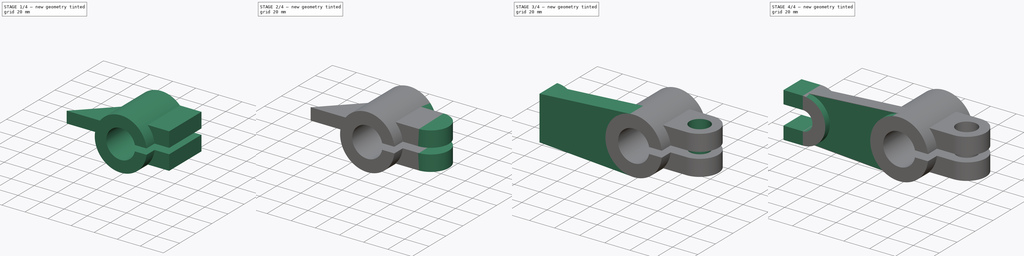
[diagram: build sequence overview — one tinted view per stage of 4, left to right]
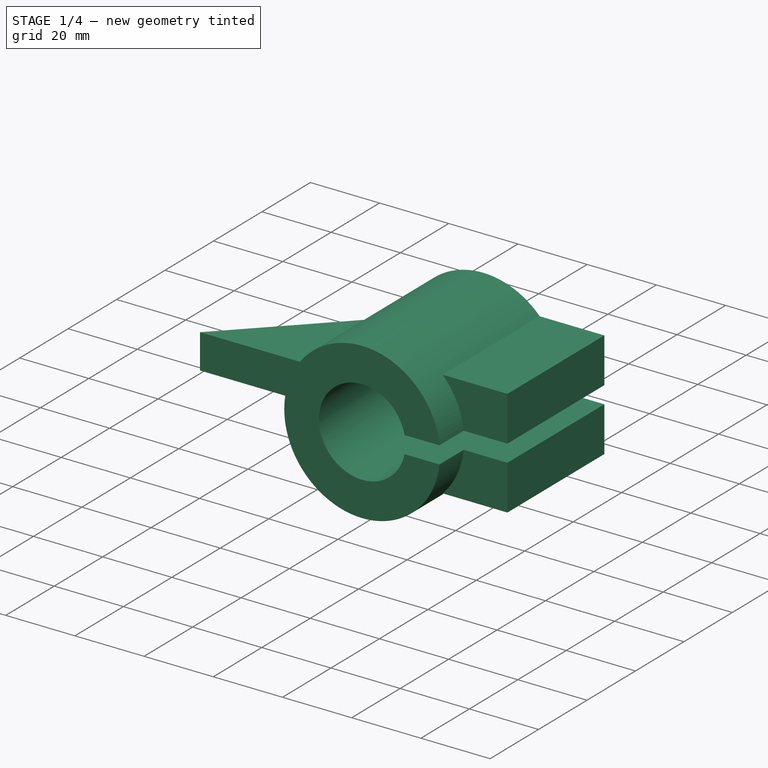
[diagram: stage 1 of 4 — iso view after this stage's code; geometry added in this stage tinted green]
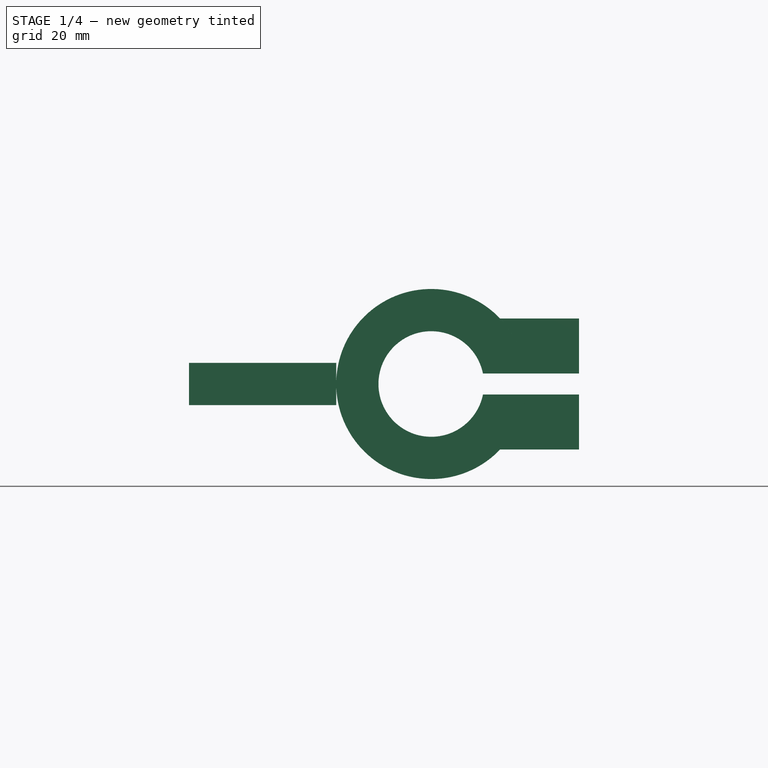
[diagram: stage 1 of 4 — front view after this stage's code; geometry added in this stage tinted green]
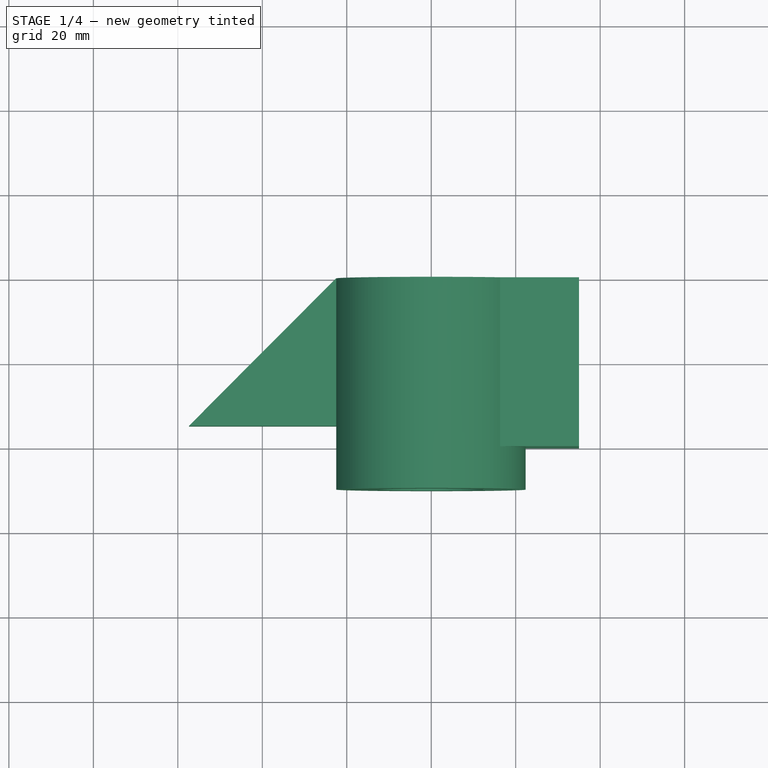
[diagram: stage 1 of 4 — top view after this stage's code; geometry added in this stage tinted green]
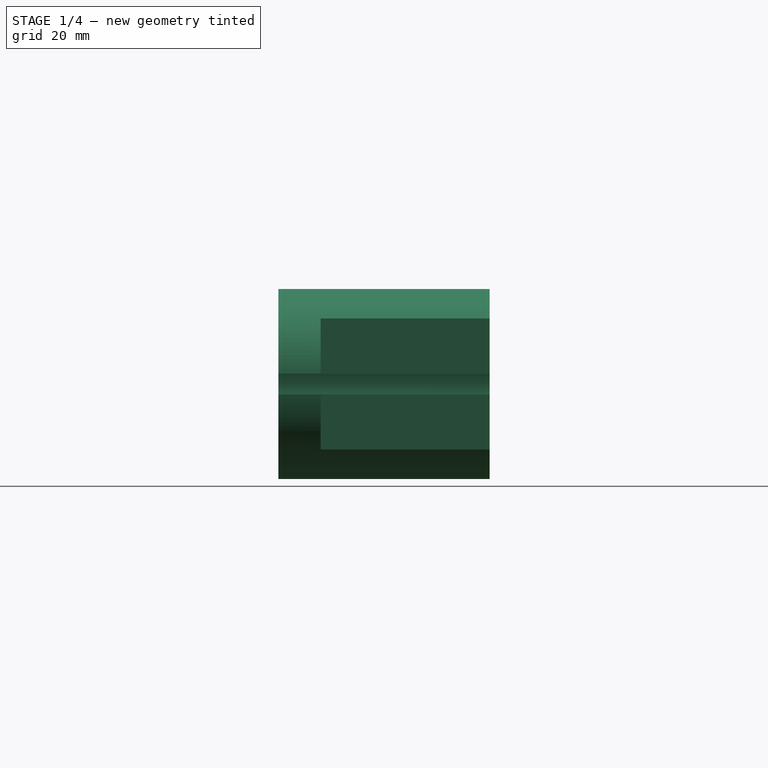
[diagram: stage 1 of 4 — right view after this stage's code; geometry added in this stage tinted green]
FCSTD DOCUMENT  (FreeCAD 0.18R4 (GitTag))
Label: Set 4
License: All rights reserved
LicenseURL: http://en.wikipedia.org/wiki/All_rights_reserved
objects: Sketcher::SketchObject×13, PartDesign::Pad×7, PartDesign::Pocket×5, PartDesign::Body×2, PartDesign::Mirrored×1
note: 40 computed .brp shape members not serialized (recipe doc carries the construction recipe); baked Part::Feature solids carry a one-line shape summary decoded from their .brp

FEATURE [PartDesign::Pad] Pad
  Length = 50
  Length2 = 100
  Placement = pos=(0,0,0) rot=(1,0,0;1.5708rad)
  Type = 0
FEATURE [Sketcher::SketchObject] Sketch001
  ExternalGeometry = -> [Pad]
  MapMode = 5
  Placement = pos=(0,0,0) rot=(-1,0,0;1.5708rad)
  Support = -> [Pad]
  sketch-geometry (8):
    g0: LineSegment StartX=16.3095 StartY=15.5 StartZ=0 EndX=35 EndY=15.5 EndZ=0
    g1: LineSegment StartX=35 StartY=15.5 StartZ=0 EndX=35 EndY=2.5 EndZ=0
    g2: LineSegment StartX=35 StartY=2.5 StartZ=0 EndX=22.3607 EndY=2.5 EndZ=0
    g3: ArcOfCircle CenterX=0 CenterY=0 CenterZ=0 NormalX=0 NormalY=0 NormalZ=1 AngleXU=0 Radius=22.5 StartAngle=0.111341 EndAngle=0.759955
    g4: LineSegment StartX=16.3095 StartY=-15.5 StartZ=0 EndX=35 EndY=-15.5 EndZ=0
    g5: ArcOfCircle CenterX=0 CenterY=0 CenterZ=0 NormalX=0 NormalY=0 NormalZ=1 AngleXU=0 Radius=22.5 StartAngle=5.52323 EndAngle=6.17184
    g6: LineSegment StartX=35 StartY=-2.5 StartZ=0 EndX=22.3607 EndY=-2.5 EndZ=0
    g7: LineSegment StartX=35 StartY=-15.5 StartZ=0 EndX=35 EndY=-2.5 EndZ=0
  constraints (18):
    c: Coincident(g0,g1)
    c: Coincident(g1,g2)
    c: Horizontal(g0)
    c: Horizontal(g2)
    c: Vertical(g1)
    c: Coincident(g3,g0)
    c: Coincident(g2,g3)
    c: Coincident(g3,g-1)
    c: DistanceY(g1,g1) = 13
    c: Coincident(g2,g-3)
    c: DistanceX(g-1,g0) = 35
    c: Coincident(g4,g7)
    c: Coincident(g7,g6)
    c: Horizontal(g4)
    c: Horizontal(g6)
    c: Vertical(g7)
    c: Coincident(g5,g4)
    c: Coincident(g6,g5)
FEATURE [PartDesign::Pad] Pad001
  BaseFeature = -> Pad
  Length = 40
  Length2 = 100
  Placement = pos=(0,0,0) rot=(1,0,0;1.5708rad)
  Profile = -> Sketch001
  Reversed = true
  Type = 0
FEATURE [PartDesign::Body] Body001
  Group = -> [Pad,Sketch001,Pad001,Sketch002,Pocket,Sketch003,Sketch004,Pad002,Mirrored,Sketch005,Pocket001,Sketch006,Pad003,Sketch007,Pocket002,Sketch008,Pad004,Sketch010,Sketch011,Pocket003,Sketch012,Pocket004,Sketch,Pad005]
  Origin = -> Origin001
  Tip = -> Pad005
FEATURE [Sketcher::SketchObject] Sketch013
  MapMode = 5
  Support = -> [XY_Plane]
  sketch-geometry (3):
    g0: LineSegment StartX=-22.5 StartY=0 StartZ=0 EndX=-57.3672 EndY=-35 EndZ=0
    g1: LineSegment StartX=-57.3672 StartY=-35 StartZ=0 EndX=-22.5 EndY=-35 EndZ=0
    g2: LineSegment StartX=-22.5 StartY=-35 StartZ=0 EndX=-22.5 EndY=0 EndZ=0
  constraints (8):
    c: Coincident(g0,g1)
    c: Coincident(g1,g2)
    c: Coincident(g0,g2)
    c: Parallel(g2,g-2)
    c: DistanceY(g2,g2) = 35
    c: DistanceX(g0,g-1) = 22.5
    c: Parallel(g1,g-1)
    c: PointOnObject(g0,g-1)
FEATURE [PartDesign::Pad] Pad006
  Length = 10
  Length2 = 100
  Midplane = true
  Profile = -> Sketch013
  Type = 0
FEATURE [PartDesign::Body] Body
  Group = -> [Sketch013,Pad006]
  Origin = -> Origin
  Tip = -> Pad006
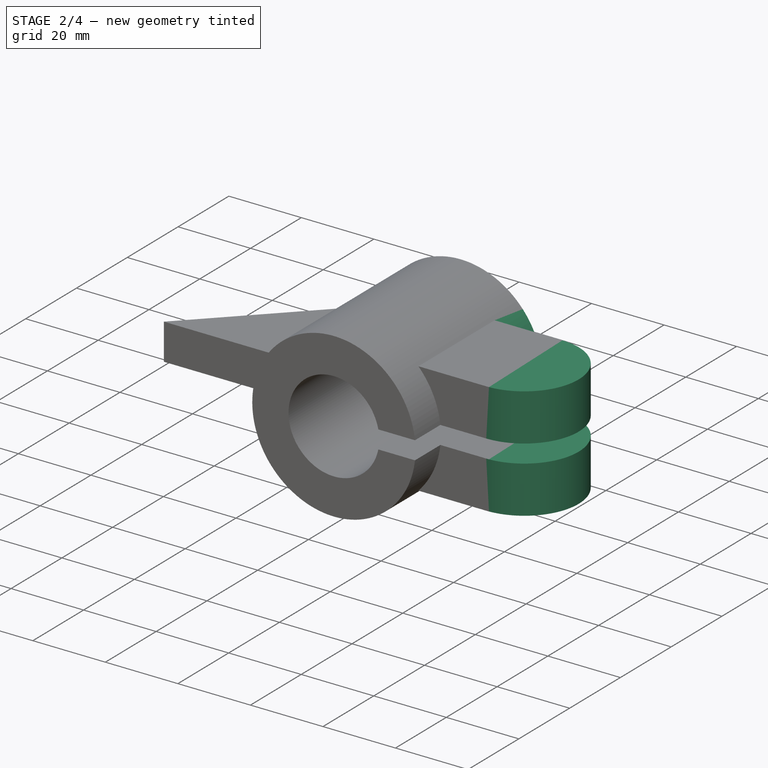
[diagram: stage 2 of 4 — iso view after this stage's code; geometry added in this stage tinted green]
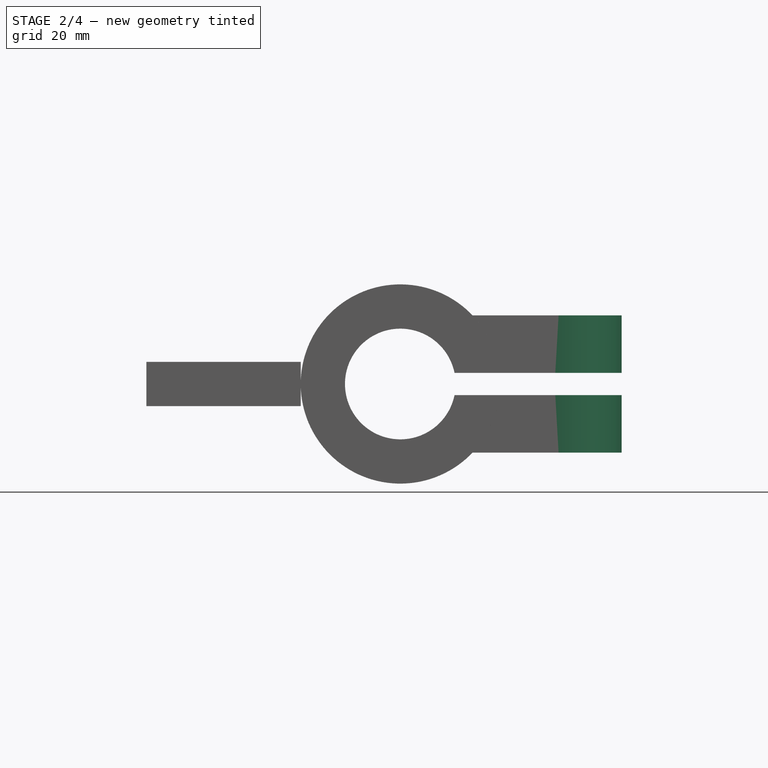
[diagram: stage 2 of 4 — front view after this stage's code; geometry added in this stage tinted green]
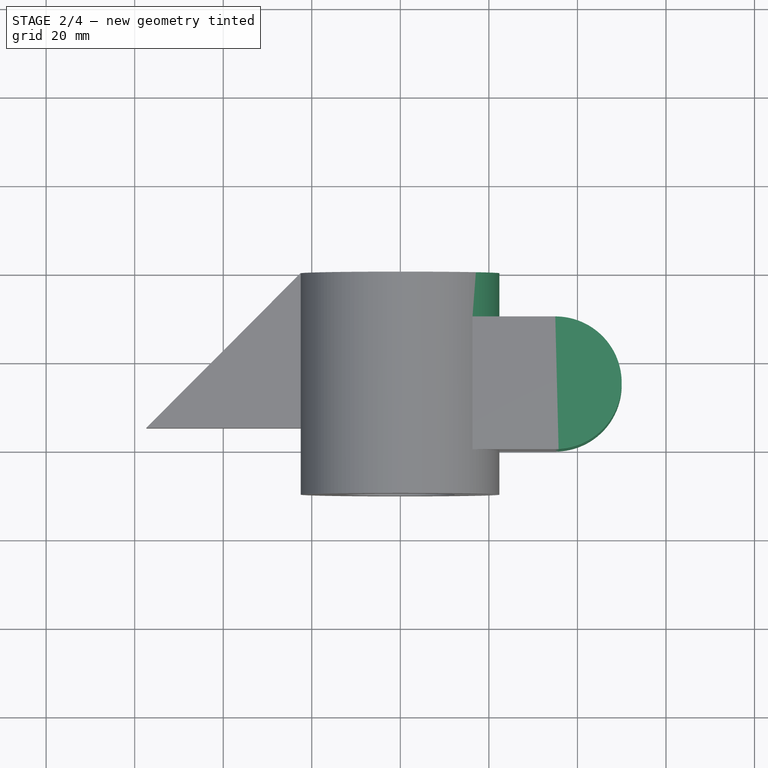
[diagram: stage 2 of 4 — top view after this stage's code; geometry added in this stage tinted green]
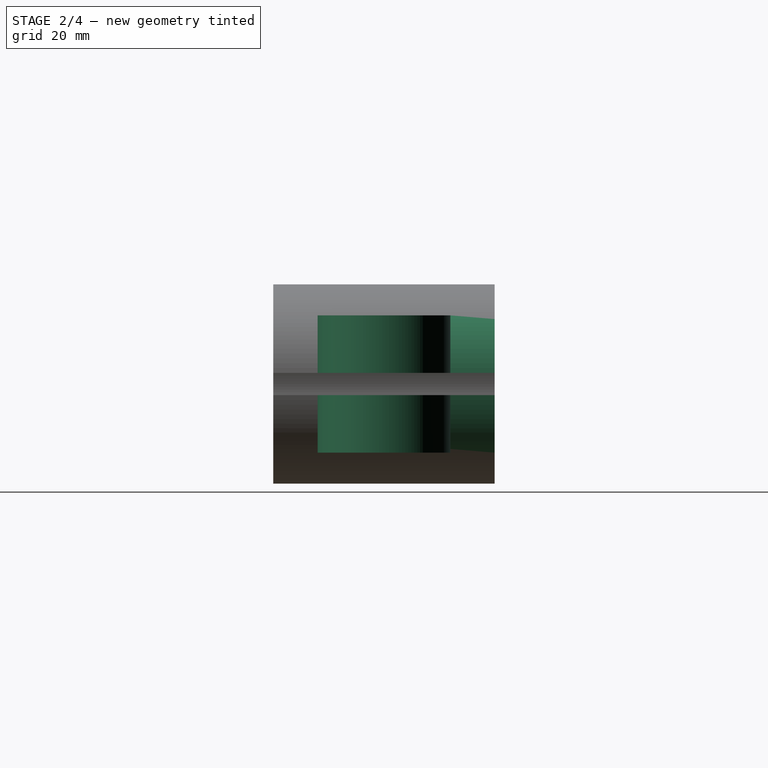
[diagram: stage 2 of 4 — right view after this stage's code; geometry added in this stage tinted green]
FEATURE [Sketcher::SketchObject] Sketch002
  ExternalGeometry = -> [Pad001]
  MapMode = 5
  Placement = pos=(0,0,0) rot=(-1,0,0;1.5708rad)
  Support = -> [Pad001]
  sketch-geometry (8):
    g0: LineSegment StartX=16.3095 StartY=15.5 StartZ=0 EndX=35 EndY=15.5 EndZ=0
    g1: LineSegment StartX=35 StartY=15.5 StartZ=0 EndX=35 EndY=2.5 EndZ=0
    g2: LineSegment StartX=35 StartY=2.5 StartZ=0 EndX=22.3607 EndY=2.5 EndZ=0
    g3: ArcOfCircle CenterX=-1.02e-14 CenterY=-2e-15 CenterZ=0 NormalX=0 NormalY=0 NormalZ=1 AngleXU=0 Radius=22.5 StartAngle=0.111341 EndAngle=0.759955
    g4: LineSegment StartX=16.3095 StartY=-15.5 StartZ=0 EndX=35 EndY=-15.5 EndZ=0
    g5: LineSegment StartX=35 StartY=-15.5 StartZ=0 EndX=35 EndY=-2.5 EndZ=0
    g6: LineSegment StartX=35 StartY=-2.5 StartZ=0 EndX=22.3607 EndY=-2.5 EndZ=0
    g7: ArcOfCircle CenterX=-1.02e-14 CenterY=2e-15 CenterZ=0 NormalX=0 NormalY=0 NormalZ=1 AngleXU=0 Radius=22.5 StartAngle=5.52323 EndAngle=6.17184
  constraints (14):
    c: Coincident(g0,g1)
    c: Coincident(g1,g2)
    c: Coincident(g3,g2)
    c: Coincident(g3,g0)
    c: Radius(g3) = 22.5
    c: Coincident(g1,g-4)
    c: Coincident(g0,g-3)
    c: Coincident(g0,g-3)
    c: Coincident(g2,g-4)
    c: Coincident(g4,g5)
    c: Coincident(g5,g6)
    c: Coincident(g7,g6)
    c: Coincident(g7,g4)
    c: Radius(g7) = 22.5
FEATURE [PartDesign::Pocket] Pocket
  BaseFeature = -> Pad001
  Length = 10
  Length2 = 100
  Placement = pos=(0,0,0) rot=(1,0,0;1.5708rad)
  Profile = -> Sketch002
  Type = 0
FEATURE [Sketcher::SketchObject] Sketch003
  MapMode = 5
  Placement = pos=(35,0,0) rot=(0.707107,0,0.707107;3.14159rad)
  Support = -> [Pocket]
FEATURE [Sketcher::SketchObject] Sketch004
  ExternalGeometry = -> [Pocket]
  MapMode = 5
  Placement = pos=(0,2.5e-14,15.5) rot=(0,0,1;3.14159rad)
  Support = -> [Pocket]
  sketch-geometry (2):
    g0: LineSegment StartX=-35 StartY=40 StartZ=0 EndX=-35 EndY=10 EndZ=0
    g1: ArcOfCircle CenterX=-35 CenterY=25 CenterZ=0 NormalX=0 NormalY=0 NormalZ=1 AngleXU=0 Radius=15 StartAngle=1.57079 EndAngle=4.71239
  constraints (5):
    c: Coincident(g1,g0)
    c: Radius(g1) = 15
    c: Coincident(g0,g-3)
    c: Coincident(g-3,g0)
    c: Coincident(g1,g0)
FEATURE [PartDesign::Pad] Pad002
  BaseFeature = -> Pocket
  Length = 13
  Length2 = 100
  Placement = pos=(0,0,0) rot=(1,0,0;1.5708rad)
  Profile = -> Sketch004
  Reversed = true
  Type = 0
FEATURE [PartDesign::Mirrored] Mirrored
  BaseFeature = -> Pad002
  MirrorPlane = -> XY_Plane001
  Originals = -> [Pad002]
  Placement = pos=(0,0,0) rot=(1,0,0;1.5708rad)
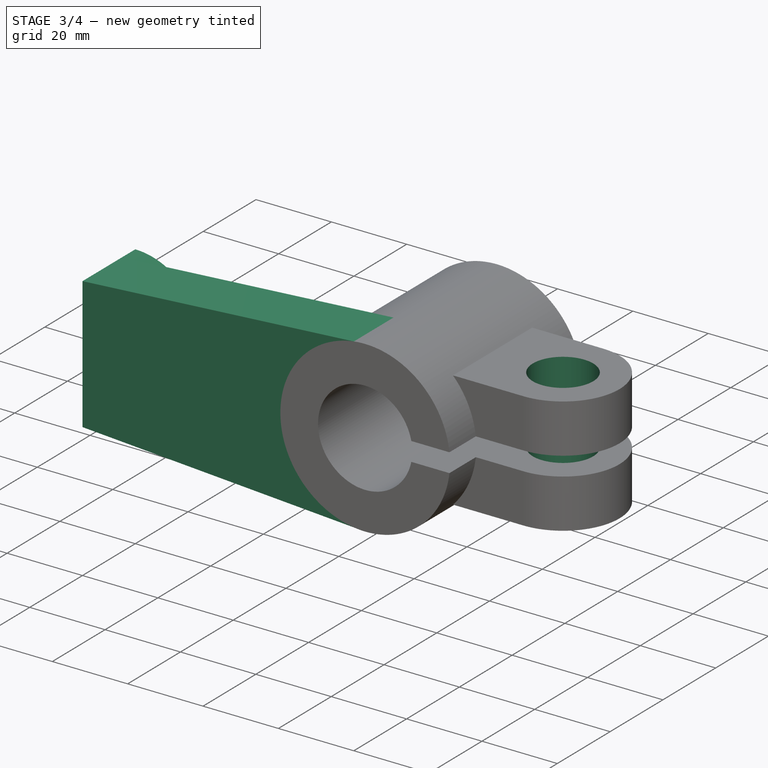
[diagram: stage 3 of 4 — iso view after this stage's code; geometry added in this stage tinted green]
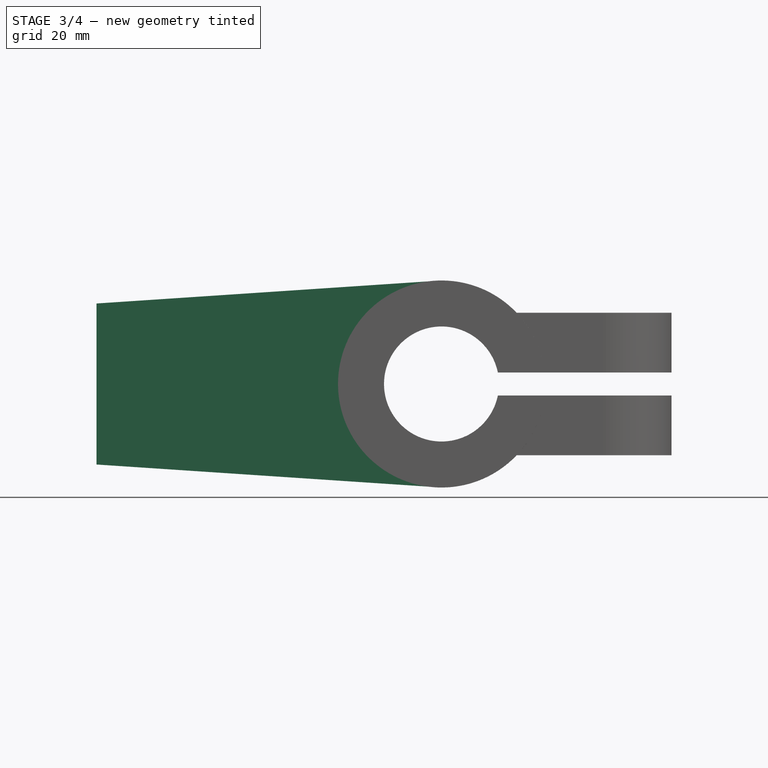
[diagram: stage 3 of 4 — front view after this stage's code; geometry added in this stage tinted green]
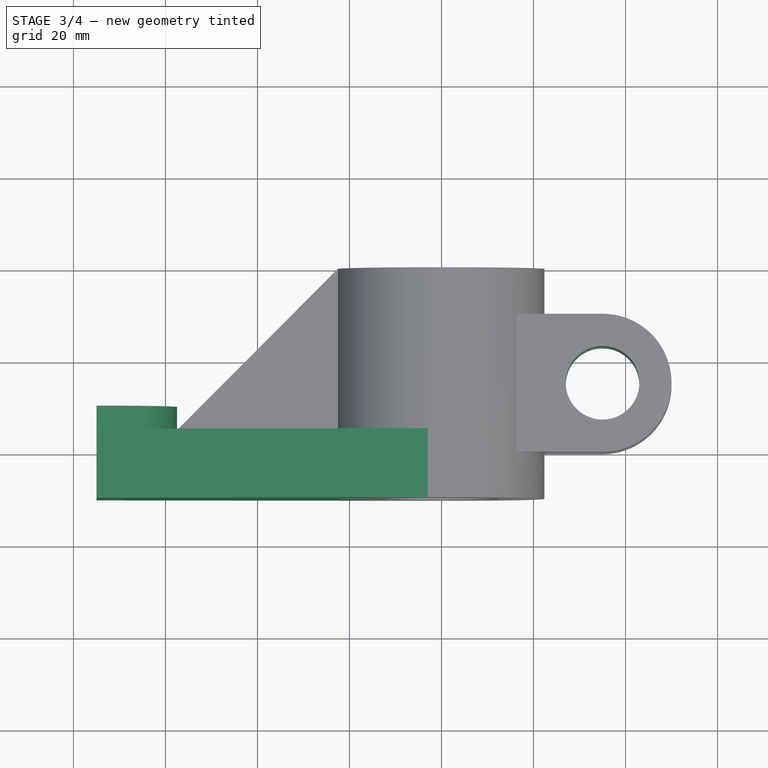
[diagram: stage 3 of 4 — top view after this stage's code; geometry added in this stage tinted green]
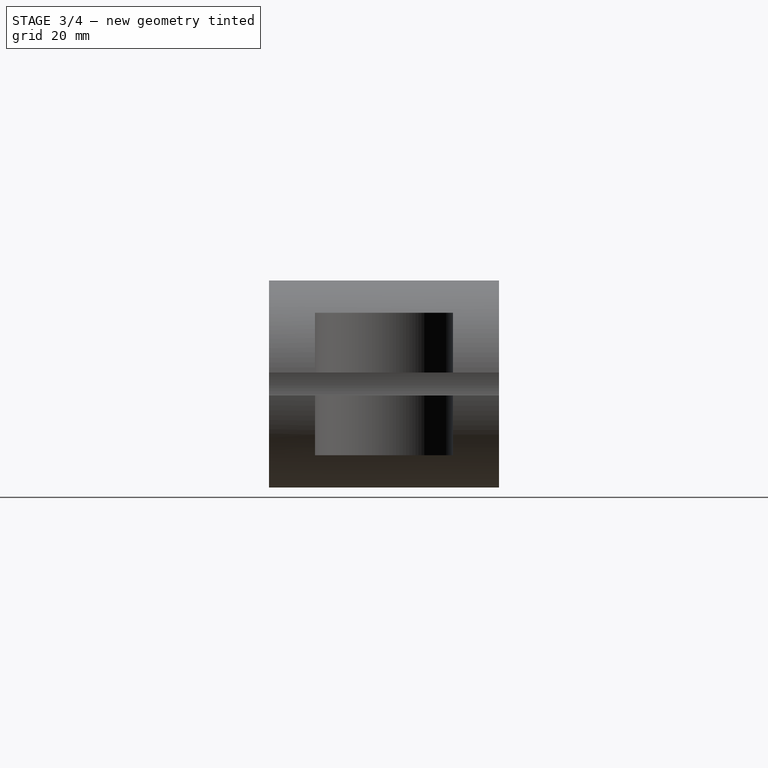
[diagram: stage 3 of 4 — right view after this stage's code; geometry added in this stage tinted green]
FEATURE [Sketcher::SketchObject] Sketch005
  ExternalGeometry = -> [Mirrored]
  MapMode = 5
  Placement = pos=(0,-3.18e-14,-15.5) rot=(1,0,0;3.14159rad)
  Support = -> [Mirrored]
  sketch-geometry (1):
    g0: Circle CenterX=35 CenterY=25 CenterZ=0 NormalX=0 NormalY=0 NormalZ=1 AngleXU=0 Radius=8
  constraints (2):
    c: Coincident(g-3,g0)
    c: Radius(g0) = 8
FEATURE [PartDesign::Pocket] Pocket001
  BaseFeature = -> Mirrored
  Length = 5
  Length2 = 100
  Placement = pos=(0,0,0) rot=(1,0,0;1.5708rad)
  Profile = -> Sketch005
  Type = 1
FEATURE [Sketcher::SketchObject] Sketch006
  ExternalGeometry = -> [Pocket001]
  MapMode = 5
  Placement = pos=(0,-50,1.221e-13) rot=(1,0,0;1.5708rad)
  Support = -> [Pocket001]
  sketch-geometry (4):
    g0: LineSegment StartX=0 StartY=22.5 StartZ=0 EndX=0 EndY=-22.5 EndZ=0
    g1: LineSegment StartX=-75 StartY=-17.5 StartZ=0 EndX=-75 EndY=17.5 EndZ=0
    g2: LineSegment StartX=-75 StartY=17.5 StartZ=0 EndX=0 EndY=22.5 EndZ=0
    g3: LineSegment StartX=-75 StartY=-17.5 StartZ=0 EndX=0 EndY=-22.5 EndZ=0
  constraints (11):
    c: Vertical(g0)
    c: PointOnObject(g0,g-2)
    c: PointOnObject(g0,g-3)
    c: PointOnObject(g0,g-3)
    c: DistanceY(g1,g1) = 35
    c: Coincident(g2,g0)
    c: Coincident(g2,g1)
    c: Coincident(g3,g0)
    c: Coincident(g3,g1)
    c: Symmetric(g1,g1,g-1)
    c: DistanceX(g1,g-1) = 75
FEATURE [PartDesign::Pad] Pad003
  BaseFeature = -> Pocket001
  Length = 15
  Length2 = 100
  Placement = pos=(0,0,0) rot=(1,0,0;1.5708rad)
  Profile = -> Sketch006
  Reversed = true
  Type = 0
FEATURE [Sketcher::SketchObject] Sketch007
  MapMode = 5
  Placement = pos=(0,0,0) rot=(-1,0,0;1.5708rad)
  Support = -> [Pad003]
  sketch-geometry (2):
    g0: ArcOfCircle CenterX=0 CenterY=0 CenterZ=0 NormalX=0 NormalY=0 NormalZ=1 AngleXU=0 Radius=12.5 StartAngle=1.5708 EndAngle=4.71239
    g1: LineSegment StartX=8e-16 StartY=12.5 StartZ=0 EndX=-2.3e-15 EndY=-12.5 EndZ=0
  constraints (6):
    c: Coincident(g0,g-1)
    c: Radius(g0) = 12.5
    c: Parallel(g1,g-2)
    c: Coincident(g1,g0)
    c: Coincident(g1,g0)
    c: PointOnObject(g0,g-2)
FEATURE [PartDesign::Pocket] Pocket002
  BaseFeature = -> Pad003
  Length = 5
  Length2 = 100
  Placement = pos=(0,0,0) rot=(1,0,0;1.5708rad)
  Profile = -> Sketch007
  Type = 1
FEATURE [Sketcher::SketchObject] Sketch008
  ExternalGeometry = -> [Pocket002]
  MapMode = 5
  Placement = pos=(0,-50,1.59e-13) rot=(1,0,0;1.5708rad)
  Support = -> [Pocket002]
  sketch-geometry (4):
    g0: ArcOfCircle CenterX=-75 CenterY=1.22e-14 CenterZ=0 NormalX=0 NormalY=0 NormalZ=1 AngleXU=0 Radius=17.5 StartAngle=4.71239 EndAngle=7.85398
    g1: ArcOfCircle CenterX=-75 CenterY=1.22e-14 CenterZ=0 NormalX=0 NormalY=0 NormalZ=1 AngleXU=0 Radius=7.5 StartAngle=4.71239 EndAngle=7.85399
    g2: LineSegment StartX=-75 StartY=17.5 StartZ=0 EndX=-75 EndY=7.5 EndZ=0
    g3: LineSegment StartX=-75 StartY=-7.5 StartZ=0 EndX=-75 EndY=-17.5 EndZ=0
  constraints (11):
    c: Radius(g0) = 17.5
    c: Coincident(g0,g-3)
    c: Coincident(g-3,g0)
    c: Coincident(g1,g0)
    c: Radius(g1) = 7.5
    c: PointOnObject(g1,g-3)
    c: PointOnObject(g1,g-3)
    c: Coincident(g3,g0)
    c: Coincident(g3,g1)
    c: Coincident(g2,g0)
    c: Coincident(g2,g1)
FEATURE [PartDesign::Pad] Pad004
  BaseFeature = -> Pocket002
  Length = 20
  Length2 = 100
  Placement = pos=(0,0,0) rot=(1,0,0;1.5708rad)
  Profile = -> Sketch008
  Reversed = true
  Type = 0
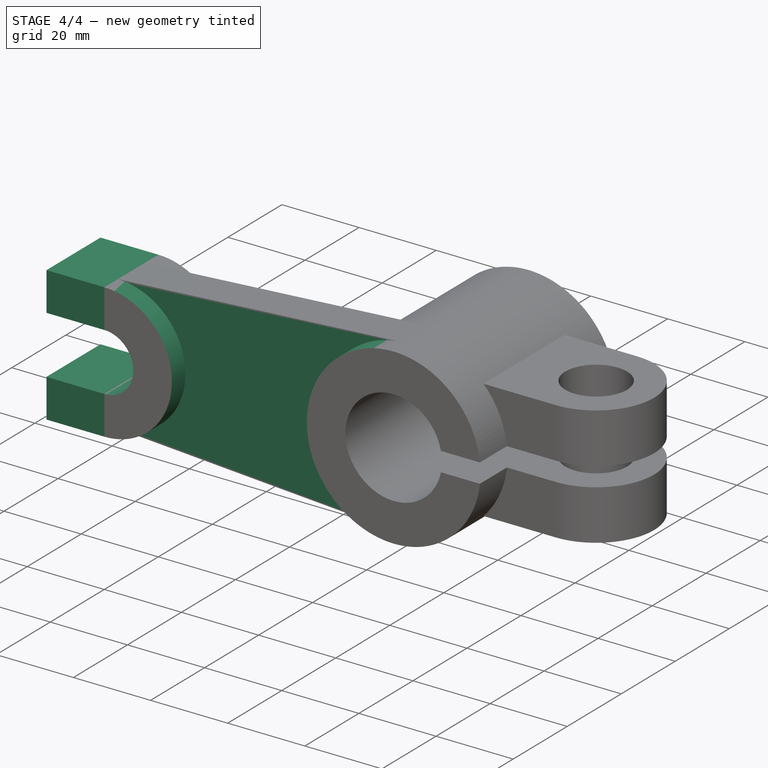
[diagram: stage 4 of 4 — iso view after this stage's code; geometry added in this stage tinted green]
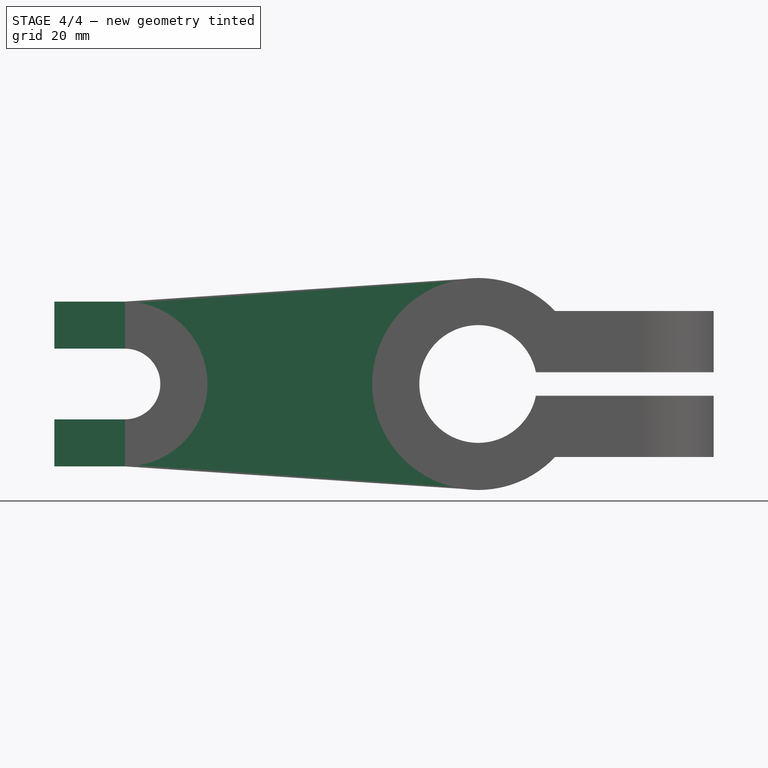
[diagram: stage 4 of 4 — front view after this stage's code; geometry added in this stage tinted green]
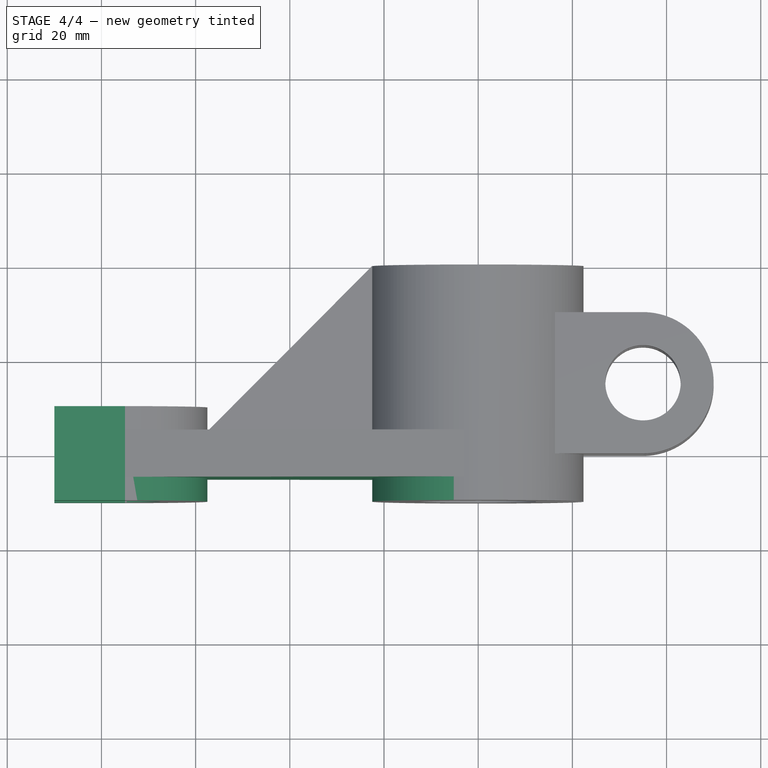
[diagram: stage 4 of 4 — top view after this stage's code; geometry added in this stage tinted green]
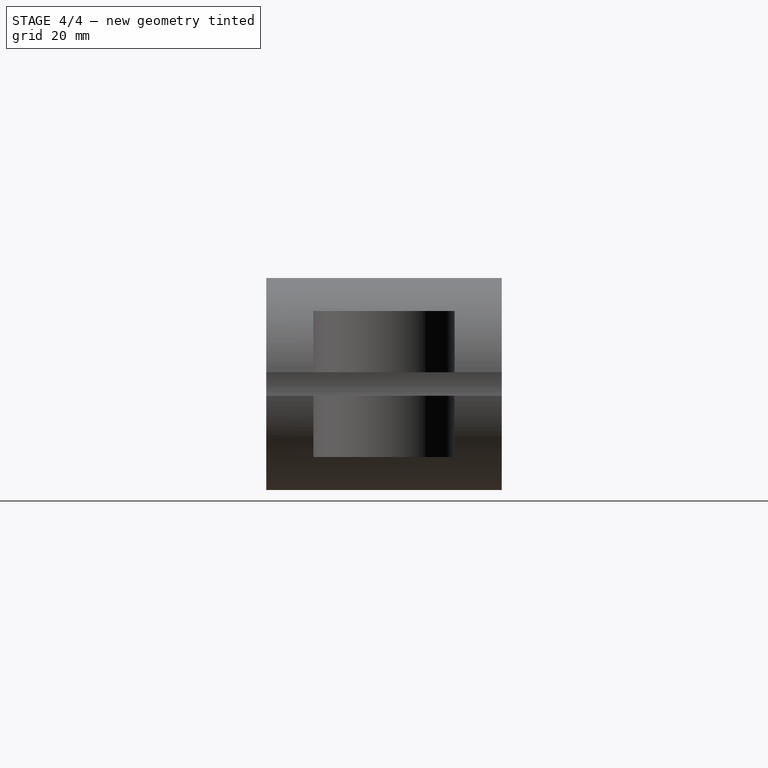
[diagram: stage 4 of 4 — right view after this stage's code; geometry added in this stage tinted green]
FEATURE [Sketcher::SketchObject] Sketch010
  MapMode = 5
  Placement = pos=(0,-50,1.812e-13) rot=(1,0,0;1.5708rad)
  Support = -> [Pad004]
FEATURE [Sketcher::SketchObject] Sketch011
  ExternalGeometry = -> [Pad004]
  MapMode = 5
  Placement = pos=(0,-50,1.812e-13) rot=(1,0,0;1.5708rad)
  Support = -> [Pad004]
  sketch-geometry (4):
    g0: LineSegment StartX=-75 StartY=17.5 StartZ=0 EndX=-2.98673 EndY=22.3009 EndZ=0
    g1: LineSegment StartX=-75 StartY=-17.5 StartZ=0 EndX=-2.98673 EndY=-22.3009 EndZ=0
    g2: ArcOfCircle CenterX=2.741e-13 CenterY=4.5e-15 CenterZ=0 NormalX=0 NormalY=0 NormalZ=1 AngleXU=0 Radius=22.5 StartAngle=1.70393 EndAngle=4.57925
    g3: ArcOfCircle CenterX=-75 CenterY=6.2e-15 CenterZ=0 NormalX=0 NormalY=0 NormalZ=1 AngleXU=0 Radius=17.5 StartAngle=4.71239 EndAngle=7.85398
  constraints (10):
    c: Coincident(g0,g-3)
    c: Coincident(g0,g-3)
    c: Coincident(g-4,g1)
    c: Coincident(g-4,g1)
    c: Coincident(g2,g1)
    c: Coincident(g2,g0)
    c: Radius(g2) = 22.5
    c: Coincident(g3,g1)
    c: Coincident(g3,g0)
    c: Radius(g3) = 17.5
FEATURE [PartDesign::Pocket] Pocket003
  BaseFeature = -> Pad004
  Length = 5
  Length2 = 100
  Placement = pos=(0,0,0) rot=(1,0,0;1.5708rad)
  Profile = -> Sketch011
  Type = 0
FEATURE [Sketcher::SketchObject] Sketch012
  ExternalGeometry = -> [Pocket003]
  MapMode = 5
  Placement = pos=(0,-35,1.424e-13) rot=(-1,0,0;1.5708rad)
  Support = -> [Pocket003]
  sketch-geometry (2):
    g0: LineSegment StartX=-75 StartY=7.5 StartZ=0 EndX=-75 EndY=-7.5 EndZ=0
    g1: ArcOfCircle CenterX=-75 CenterY=-1.24e-14 CenterZ=0 NormalX=0 NormalY=0 NormalZ=1 AngleXU=0 Radius=7.5 StartAngle=4.71238 EndAngle=7.85399
  constraints (5):
    c: Radius(g1) = 7.5
    c: Coincident(g-3,g1)
    c: Coincident(g-3,g1)
    c: Coincident(g0,g1)
    c: Coincident(g1,g0)
FEATURE [PartDesign::Pocket] Pocket004
  BaseFeature = -> Pocket003
  Length = 5
  Length2 = 100
  Placement = pos=(0,0,0) rot=(1,0,0;1.5708rad)
  Profile = -> Sketch012
  Type = 1
FEATURE [Sketcher::SketchObject] Sketch
  ExternalGeometry = -> [Pocket004]
  MapMode = 5
  Placement = pos=(0,-30,1.284e-13) rot=(-1,0,0;1.5708rad)
  Support = -> [Pocket004]
  sketch-geometry (8):
    g0: LineSegment StartX=-90 StartY=17.5 StartZ=0 EndX=-75 EndY=17.5 EndZ=0
    g1: LineSegment StartX=-75 StartY=17.5 StartZ=0 EndX=-75 EndY=7.5 EndZ=0
    g2: LineSegment StartX=-75 StartY=7.5 StartZ=0 EndX=-90 EndY=7.5 EndZ=0
    g3: LineSegment StartX=-90 StartY=7.5 StartZ=0 EndX=-90 EndY=17.5 EndZ=0
    g4: LineSegment StartX=-90 StartY=-17.5 StartZ=0 EndX=-75 EndY=-17.5 EndZ=0
    g5: LineSegment StartX=-75 StartY=-17.5 StartZ=0 EndX=-75 EndY=-7.5 EndZ=0
    g6: LineSegment StartX=-75 StartY=-7.5 StartZ=0 EndX=-90 EndY=-7.5 EndZ=0
    g7: LineSegment StartX=-90 StartY=-7.5 StartZ=0 EndX=-90 EndY=-17.5 EndZ=0
  constraints (17):
    c: Coincident(g0,g1)
    c: Coincident(g1,g2)
    c: Coincident(g2,g3)
    c: Coincident(g3,g0)
    c: Horizontal(g0)
    c: Horizontal(g2)
    c: Vertical(g3)
    c: DistanceX(g0,g0) = 15
    c: Coincident(g1,g-3)
    c: Coincident(g-3,g0)
    c: Coincident(g4,g5)
    c: Coincident(g5,g6)
    c: Coincident(g6,g7)
    c: Coincident(g7,g4)
    c: Horizontal(g4)
    c: Horizontal(g6)
    c: Vertical(g7)
FEATURE [PartDesign::Pad] Pad005
  BaseFeature = -> Pocket004
  Length = 20
  Length2 = 100
  Placement = pos=(0,0,0) rot=(1,0,0;1.5708rad)
  Profile = -> Sketch
  Reversed = true
  Type = 0
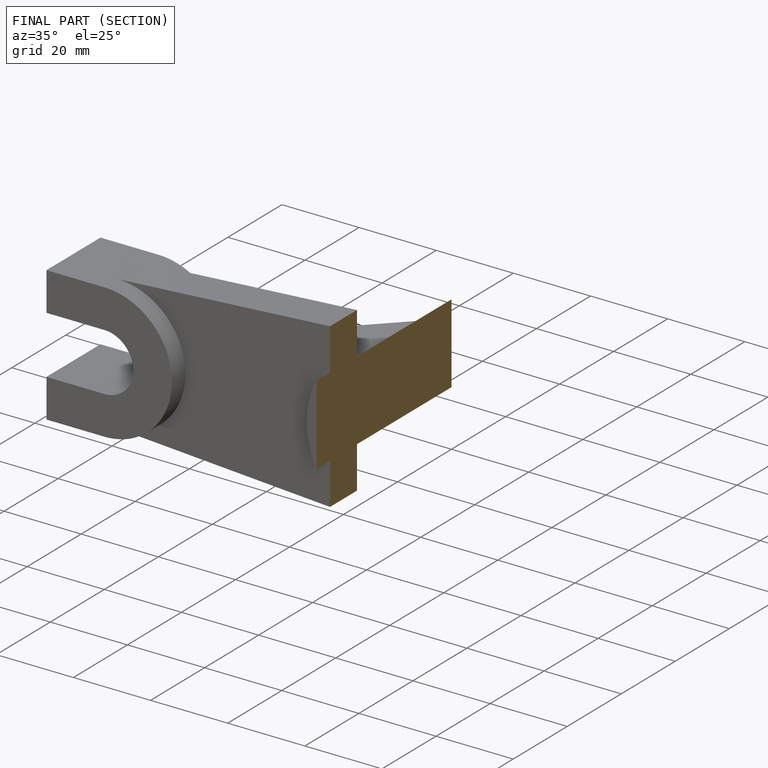
[diagram: finished part — half-section view (interior)]
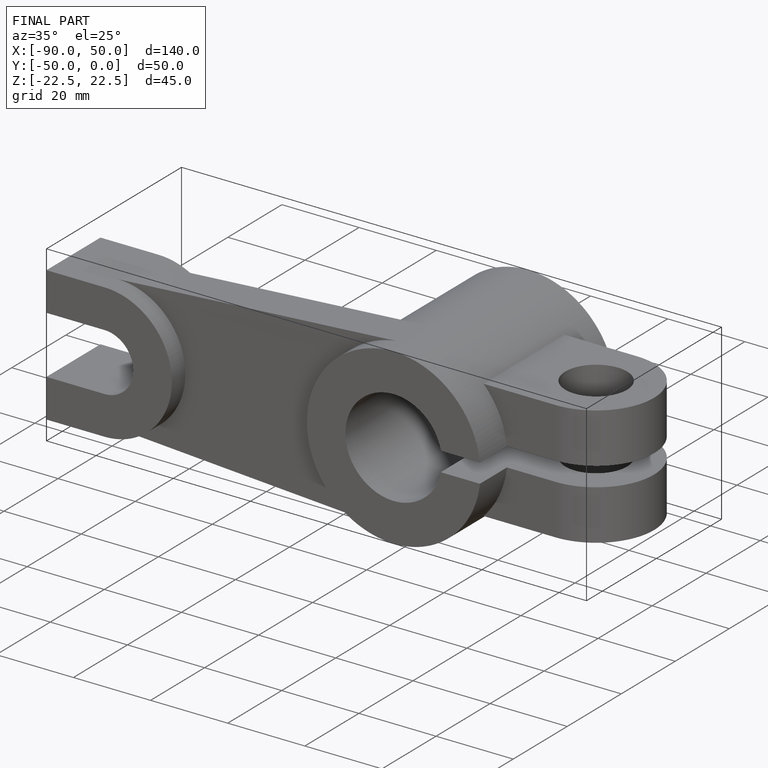
[diagram: finished part — iso view with bounding-box wireframe]
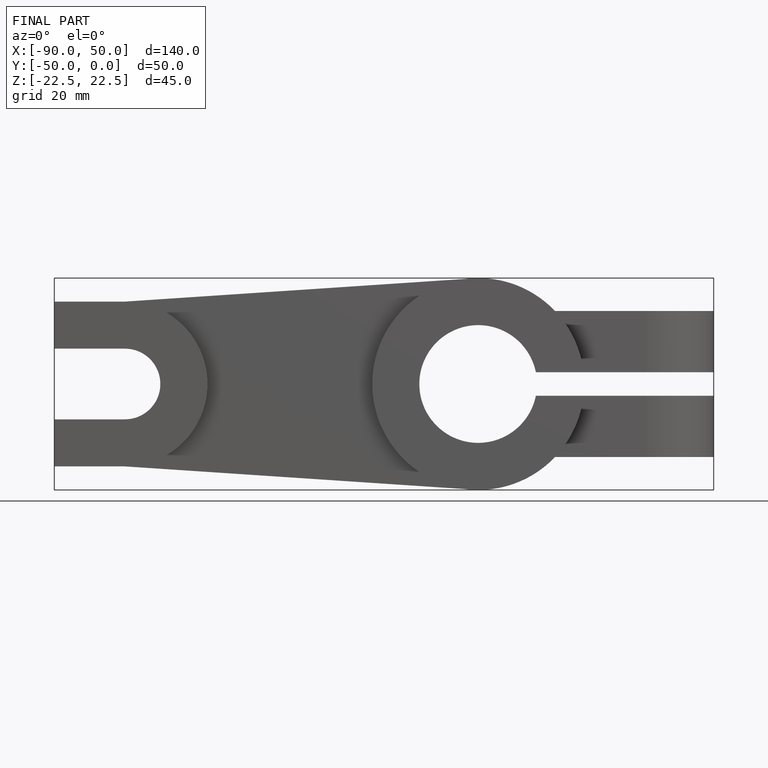
[diagram: finished part — front view with bounding-box wireframe]
